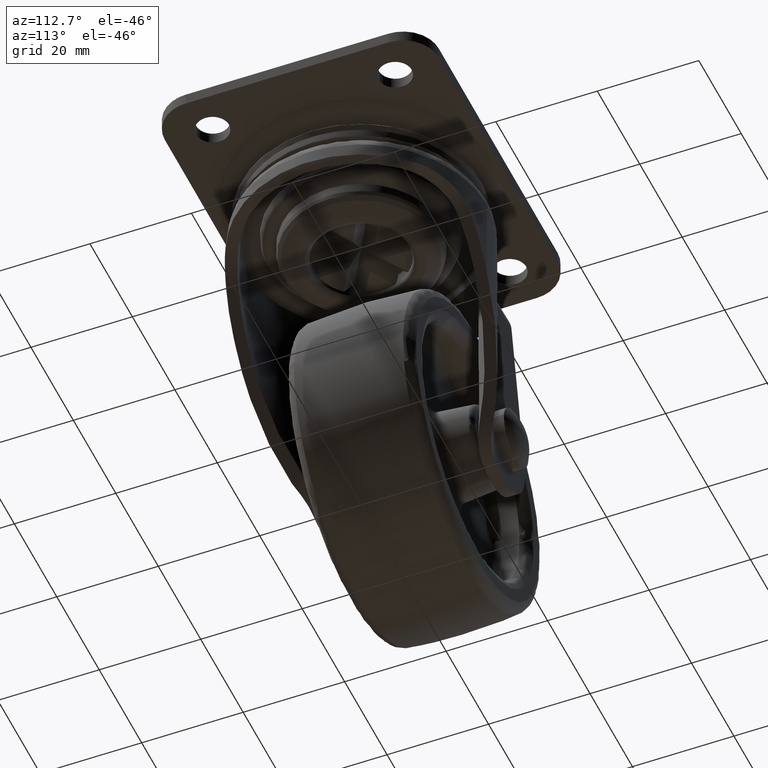
[diagram: clean part render]
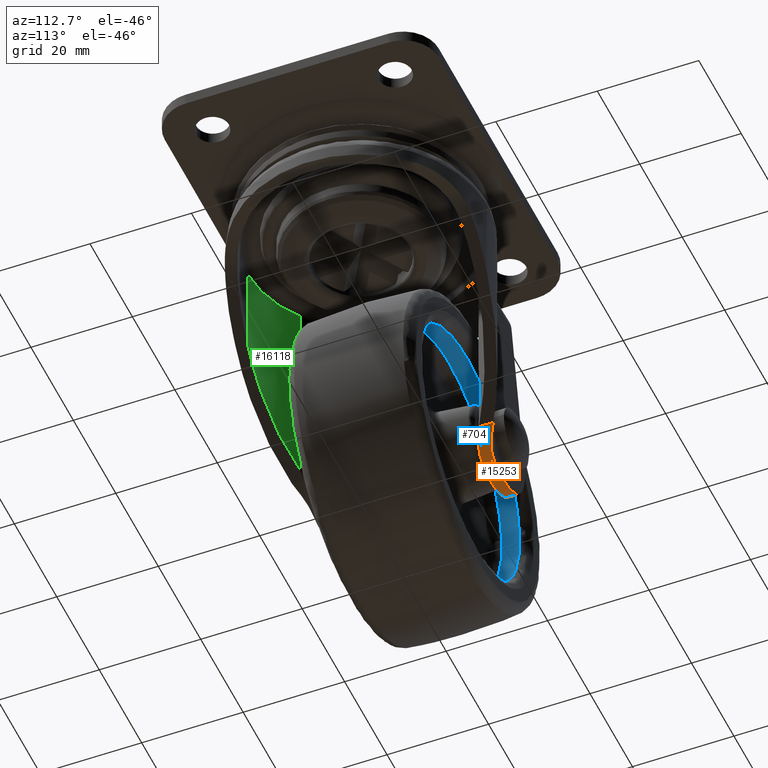
[diagram: same view with three faces highlighted in distinct colors, each labeled with its STEP entity id]
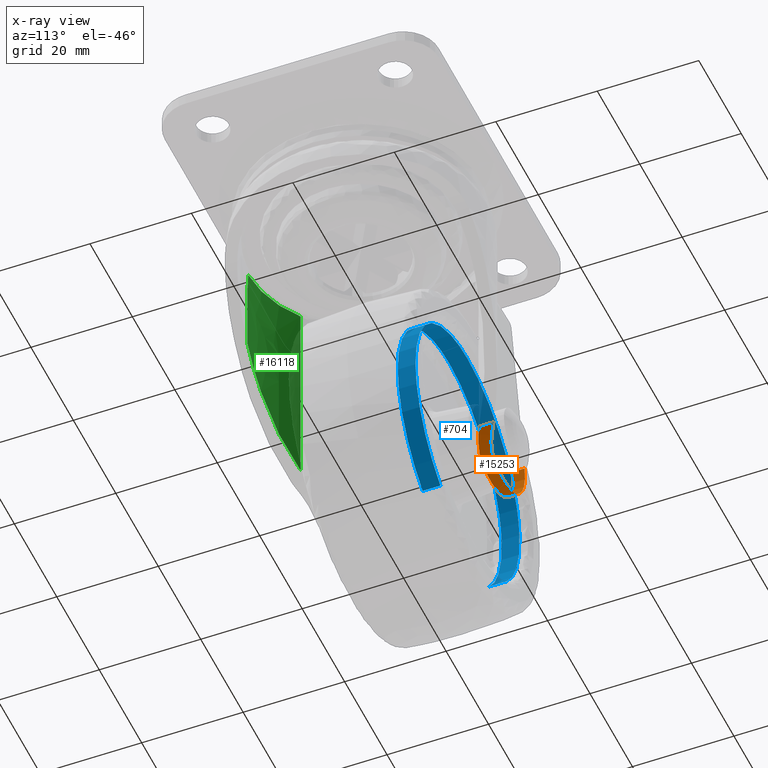
[diagram: x-ray of the same camera — body ghosted, the three highlighted faces saturated]
A machine part, auxiliary view with three faces highlighted in distinct colors.
The next image is the same camera in x-ray (body ghosted, the three faces saturated) — at least one of them is partly hidden behind the body in this view.
Their STEP definitions:

[orange] entity #15253 — the highlighted face is a freeform B-spline surface patch.
#15128=CARTESIAN_POINT('',(-14.584685028560250,19.989959612538691,-53.950023721414453));
#15129=CARTESIAN_POINT('',(-14.584685028560250,15.280029837350050,-53.950023721414453));
#15130=CARTESIAN_POINT('',(-19.581232741208197,19.989959612538684,-61.906054317529829));
#15131=CARTESIAN_POINT('',(-19.581232741208197,15.280029837350051,-61.906054317529829));
#15132=CARTESIAN_POINT('',(-28.220943666885589,19.989959612538691,-58.215619788667162));
#15133=CARTESIAN_POINT('',(-28.220943666885589,15.280029837350050,-58.215619788667162));
#15134=CARTESIAN_POINT('',(-36.860654592563002,19.989959612538684,-54.525185259804488));
#15135=CARTESIAN_POINT('',(-36.860654592563002,15.280029837350051,-54.525185259804488));
#15136=CARTESIAN_POINT('',(-34.567203993436209,19.989959612538691,-45.414532361111860));
#15137=CARTESIAN_POINT('',(-34.567203993436209,15.280029837350050,-45.414532361111860));
#15145=(BOUNDED_SURFACE()B_SPLINE_SURFACE(1,2,((#15128,#15130,#15132,#15134,#15136),(#15129,#15131,#15133,#15135,#15137)),.UNSPECIFIED.,.F.,.F.,.U.)B_SPLINE_SURFACE_WITH_KNOTS((2,2),(3,2,3),(0.0,4.709929775188641),(0.0,16.232456992832422,32.464913985664843),.UNSPECIFIED.)GEOMETRIC_REPRESENTATION_ITEM()RATIONAL_B_SPLINE_SURFACE(((1.0,0.760405965600031,1.0,0.760405965600031,1.0),(1.0,0.760405965600031,1.0,0.760405965600031,1.0)))REPRESENTATION_ITEM('')SURFACE());
#15146=CARTESIAN_POINT('',(-34.745005646522102,17.696581632656649,-46.259749379837203));
#15147=VERTEX_POINT('',#15146);
#15148=CARTESIAN_POINT('',(-20.019497922535550,17.853252000823051,-58.392616629469813));
#15149=VERTEX_POINT('',#15148);
#15150=CARTESIAN_POINT('',(-34.745005646522102,17.696581632656649,-46.259749379837203));
#15151=CARTESIAN_POINT('',(-35.810440731135003,17.685246056994778,-52.539216016037649));
#15152=CARTESIAN_POINT('',(-30.894833408678512,17.737545103208429,-56.589358952538902));
#15153=CARTESIAN_POINT('',(-25.979226086221995,17.789844149422091,-60.639501889040147));
#15154=CARTESIAN_POINT('',(-20.019497922535550,17.853252000823051,-58.392616629469813));
#15162=(BOUNDED_CURVE()B_SPLINE_CURVE(2,(#15150,#15151,#15152,#15153,#15154),.UNSPECIFIED.,.F.,.U.)B_SPLINE_CURVE_WITH_KNOTS((3,2,3),(0.0,0.500000000000000,1.0),.UNSPECIFIED.)CURVE()GEOMETRIC_REPRESENTATION_ITEM()RATIONAL_B_SPLINE_CURVE((1.0,0.865399324793042,1.0,0.865399324793042,1.0))REPRESENTATION_ITEM(''));
#15163=EDGE_CURVE('',#15147,#15149,#15162,.T.);
#15164=ORIENTED_EDGE('',*,*,#15163,.T.);
#15165=CARTESIAN_POINT('',(-15.193558866906150,19.537611649274250,-54.822755066191313));
#15166=VERTEX_POINT('',#15165);
#15167=CARTESIAN_POINT('',(-20.019497922535550,17.853252000823051,-58.392616629469813));
#15168=CARTESIAN_POINT('',(-19.522657645432439,17.858538076563921,-58.205302197614792));
#15169=CARTESIAN_POINT('',(-19.043946497870461,17.909510013208529,-57.983972169996370));
#15170=CARTESIAN_POINT('',(-18.467246050208310,18.021270146477640,-57.665514235795413));
#15171=CARTESIAN_POINT('',(-18.353287824061709,18.046002033750870,-57.599868938586283));
#15172=CARTESIAN_POINT('',(-18.129773615824561,18.099526766632181,-57.465792123058527));
#15173=CARTESIAN_POINT('',(-18.019949368258040,18.128370186462028,-57.397214124152178));
#15174=CARTESIAN_POINT('',(-17.696007475668530,18.220691423492180,-57.186993427107971));
#15175=CARTESIAN_POINT('',(-17.487408955176068,18.289945478282860,-57.040872321058629));
#15176=CARTESIAN_POINT('',(-17.083841370772671,18.441898034508249,-56.737164688739988));
#15177=CARTESIAN_POINT('',(-16.888875522469458,18.524602735493580,-56.579576956579430));
#15178=CARTESIAN_POINT('',(-16.606087077362812,18.657578604573459,-56.334766626267523));
#15179=CARTESIAN_POINT('',(-16.513436668383729,18.703392930471448,-56.251756538333993));
#15180=CARTESIAN_POINT('',(-16.331291858827139,18.797828840275301,-56.082929978326312));
#15181=CARTESIAN_POINT('',(-16.241702489920829,18.846504819013660,-55.997018870809761));
#15182=CARTESIAN_POINT('',(-15.802552989229230,19.095909714333690,-55.561465904893943));
#15183=CARTESIAN_POINT('',(-15.484131345806960,19.311645950777748,-55.199056697091663));
#15184=CARTESIAN_POINT('',(-15.193558866906081,19.537611649274339,-54.822755066191398));
#15185=B_SPLINE_CURVE_WITH_KNOTS('',3,(#15167,#15168,#15169,#15170,#15171,#15172,#15173,#15174,#15175,#15176,#15177,#15178,#15179,#15180,#15181,#15182,#15183,#15184),.UNSPECIFIED.,.F.,.U.,(4,2,2,2,2,2,2,2,4),(0.0,0.249999999999997,0.312499999999996,0.374999999999995,0.499999999999994,0.624999999999994,0.687499999999995,0.749999999999997,1.0),.UNSPECIFIED.);
#15186=EDGE_CURVE('',#15149,#15166,#15185,.T.);
#15187=ORIENTED_EDGE('',*,*,#15186,.T.);
#15188=CARTESIAN_POINT('',(-14.745581793341140,19.877885138411649,-54.198721778351498));
#15189=VERTEX_POINT('',#15188);
#15190=CARTESIAN_POINT('',(-15.193558866906150,19.537611649274250,-54.822755066191199));
#15191=CARTESIAN_POINT('',(-15.038038723742270,19.658552964546939,-54.621350983699351));
#15192=CARTESIAN_POINT('',(-14.888573680798380,19.771812557872860,-54.413351748837471));
#15193=CARTESIAN_POINT('',(-14.745581793341049,19.877885138411710,-54.198721778351583));
#15194=QUASI_UNIFORM_CURVE('',3,(#15190,#15191,#15192,#15193),.UNSPECIFIED.,.F.,.U.);
#15195=EDGE_CURVE('',#15166,#15189,#15194,.T.);
#15196=ORIENTED_EDGE('',*,*,#15195,.T.);
#15197=CARTESIAN_POINT('',(-14.745581793341140,17.056729903750949,-54.198721778351498));
#15198=VERTEX_POINT('',#15197);
#15199=CARTESIAN_POINT('',(-14.745581793341140,19.877885138411649,-54.198721778351498));
#15200=CARTESIAN_POINT('',(-14.745581793341140,17.056729903750949,-54.198721778351498));
#15201=QUASI_UNIFORM_CURVE('',1,(#15199,#15200),.UNSPECIFIED.,.F.,.U.);
#15202=EDGE_CURVE('',#15189,#15198,#15201,.T.);
#15203=ORIENTED_EDGE('',*,*,#15202,.T.);
#15204=CARTESIAN_POINT('',(-19.995028718448751,15.553382165800651,-58.383358211924012));
#15205=VERTEX_POINT('',#15204);
#15206=CARTESIAN_POINT('',(-19.995028718448751,15.553382165800651,-58.383358211924012));
#15207=CARTESIAN_POINT('',(-19.718705031221340,15.556322080309741,-58.278429749468607));
#15208=CARTESIAN_POINT('',(-19.449606868208061,15.570272475633590,-58.163530507148252));
#15209=CARTESIAN_POINT('',(-18.924884892517561,15.617192940123809,-57.914732065916873));
#15210=CARTESIAN_POINT('',(-18.669264078902810,15.650172662988579,-57.780830093268797));
#15211=CARTESIAN_POINT('',(-18.170884614111699,15.732793562441429,-57.494488314675827));
#15212=CARTESIAN_POINT('',(-17.928127490625162,15.782441476149661,-57.342047584329400));
#15213=CARTESIAN_POINT('',(-17.573395907196470,15.867922796827781,-57.099517877903800));
#15214=CARTESIAN_POINT('',(-17.456721524168881,15.898253828023980,-57.016360031243231));
#15215=CARTESIAN_POINT('',(-17.226495663678570,15.962362119317330,-56.845382543534917));
#15216=CARTESIAN_POINT('',(-17.112800383422570,15.996193852382000,-56.757431916802922));
#15217=CARTESIAN_POINT('',(-16.557120702407140,16.171751953008592,-56.310045859444458));
#15218=CARTESIAN_POINT('',(-16.149250982473699,16.333536519678098,-55.925171923780660));
#15219=CARTESIAN_POINT('',(-15.586111814043580,16.594506005762860,-55.307926754915727));
#15220=CARTESIAN_POINT('',(-15.406570230496770,16.684574088290439,-55.095475732244097));
#15221=CARTESIAN_POINT('',(-15.149203125400760,16.822658671483250,-54.766372443530173));
#15222=CARTESIAN_POINT('',(-15.065312284716279,16.869238796993731,-54.654796623786787));
#15223=CARTESIAN_POINT('',(-14.901957119156640,16.962845174361249,-54.428694369419048));
#15224=CARTESIAN_POINT('',(-14.822624224357639,17.009791617378930,-54.314362007942833));
#15225=CARTESIAN_POINT('',(-14.745581793341060,17.056729903751059,-54.198721778351590));
#15226=B_SPLINE_CURVE_WITH_KNOTS('',3,(#15206,#15207,#15208,#15209,#15210,#15211,#15212,#15213,#15214,#15215,#15216,#15217,#15218,#15219,#15220,#15221,#15222,#15223,#15224,#15225),.UNSPECIFIED.,.F.,.U.,(4,2,2,2,2,2,2,2,2,4),(0.0,0.125000000000002,0.250000000000004,0.375000000000006,0.437500000000006,0.500000000000007,0.750000000000006,0.875000000000004,0.937500000000002,1.0),.UNSPECIFIED.);
#15227=EDGE_CURVE('',#15205,#15198,#15226,.T.);
#15228=ORIENTED_EDGE('',*,*,#15227,.F.);
#15229=CARTESIAN_POINT('',(-34.745005646522102,15.396451460313299,-46.259749379837203));
#15230=VERTEX_POINT('',#15229);
#15231=CARTESIAN_POINT('',(-34.745005646522102,15.396451460313299,-46.259749379837203));
#15232=CARTESIAN_POINT('',(-35.811902141057317,15.385100336146319,-52.547829281154812));
#15233=CARTESIAN_POINT('',(-30.884732781224152,15.437522395344420,-56.597671139169492));
#15234=CARTESIAN_POINT('',(-25.957563421390983,15.489944454542517,-60.647512997184158));
#15235=CARTESIAN_POINT('',(-19.995028718448751,15.553382165800519,-58.383358211924097));
#15243=(BOUNDED_CURVE()B_SPLINE_CURVE(2,(#15231,#15232,#15233,#15234,#15235),.UNSPECIFIED.,.F.,.U.)B_SPLINE_CURVE_WITH_KNOTS((3,2,3),(0.0,0.500000000000000,1.0),.UNSPECIFIED.)CURVE()GEOMETRIC_REPRESENTATION_ITEM()RATIONAL_B_SPLINE_CURVE((1.0,0.865101230286564,1.0,0.865101230286564,1.0))REPRESENTATION_ITEM(''));
#15244=EDGE_CURVE('',#15230,#15205,#15243,.T.);
#15245=ORIENTED_EDGE('',*,*,#15244,.F.);
#15246=CARTESIAN_POINT('',(-34.745005646522102,17.696581632656649,-46.259749379837203));
#15247=CARTESIAN_POINT('',(-34.745005646522102,15.396451460313299,-46.259749379837203));
#15248=QUASI_UNIFORM_CURVE('',1,(#15246,#15247),.UNSPECIFIED.,.F.,.U.);
#15249=EDGE_CURVE('',#15147,#15230,#15248,.T.);
#15250=ORIENTED_EDGE('',*,*,#15249,.F.);
#15251=EDGE_LOOP('',(#15164,#15187,#15196,#15203,#15228,#15245,#15250));
#15252=FACE_OUTER_BOUND('',#15251,.T.);
#15253=ADVANCED_FACE('',(#15252),#15145,.T.);

[blue] entity #704 — the highlighted face is a freeform B-spline surface patch.
#534=CARTESIAN_POINT('',(-12.217712289268318,10.587500000769335,-69.401071577974520));
#535=CARTESIAN_POINT('',(-10.379585617207434,10.587500000769341,-68.276948745069674));
#536=CARTESIAN_POINT('',(-8.765875080719258,10.587500000769341,-66.849258263758472));
#537=CARTESIAN_POINT('',(9.583465183039209,10.587500000769337,-50.615133344477726));
#538=CARTESIAN_POINT('',(-6.650659736241533,10.587500000769341,-32.265793080719263));
#539=CARTESIAN_POINT('',(-22.884784655522271,10.587500000769337,-13.916452816960796));
#540=CARTESIAN_POINT('',(-41.234124919280752,10.587500000769341,-30.150577736241530));
#541=CARTESIAN_POINT('',(-59.583465183039202,10.587500000769337,-46.384702655522275));
#542=CARTESIAN_POINT('',(-43.349340263758457,10.587500000769341,-64.734042919280739));
#543=CARTESIAN_POINT('',(-12.217712289268318,6.910312499181044,-69.401071577974520));
#544=CARTESIAN_POINT('',(-10.379585617207434,6.910312499181044,-68.276948745069674));
#545=CARTESIAN_POINT('',(-8.765875080719258,6.910312499181044,-66.849258263758472));
#546=CARTESIAN_POINT('',(9.583465183039209,6.910312499181044,-50.615133344477726));
#547=CARTESIAN_POINT('',(-6.650659736241533,6.910312499181044,-32.265793080719263));
#548=CARTESIAN_POINT('',(-22.884784655522271,6.910312499181044,-13.916452816960796));
#549=CARTESIAN_POINT('',(-41.234124919280752,6.910312499181044,-30.150577736241530));
#550=CARTESIAN_POINT('',(-59.583465183039202,6.910312499181044,-46.384702655522275));
#551=CARTESIAN_POINT('',(-43.349340263758457,6.910312499181044,-64.734042919280739));
#559=(BOUNDED_SURFACE()B_SPLINE_SURFACE(2,1,((#534,#543),(#535,#544),(#536,#545),(#537,#546),(#538,#547),(#539,#548),(#540,#549),(#541,#550),(#542,#551)),.UNSPECIFIED.,.F.,.F.,.U.)B_SPLINE_SURFACE_WITH_KNOTS((3,2,2,2,3),(2,2),(0.0,4.871131611256605,45.463895038394973,86.056658465533317,126.649421892671700),(0.0,3.677187501588294),.UNSPECIFIED.)GEOMETRIC_REPRESENTATION_ITEM()RATIONAL_B_SPLINE_SURFACE(((0.938140952186599,0.938140952186599),(0.964852813742386,0.964852813742386),(1.0,1.0),(0.707106781186548,0.707106781186548),(1.0,1.0),(0.707106781186548,0.707106781186548),(1.0,1.0),(0.707106781186548,0.707106781186548),(1.0,1.0)))REPRESENTATION_ITEM('')SURFACE());
#560=CARTESIAN_POINT('',(-12.217713956080519,10.500000000107750,-69.401072597324713));
#561=VERTEX_POINT('',#560);
#562=CARTESIAN_POINT('',(-0.502034409111537,10.500000000724521,-48.807784720586490));
#563=VERTEX_POINT('',#562);
#564=CARTESIAN_POINT('',(-12.217713956080523,10.500000000107745,-69.401072597324713));
#565=CARTESIAN_POINT('',(-0.672097317157479,10.500000000319242,-62.340248577040512));
#566=CARTESIAN_POINT('',(-0.502034409111537,10.500000000724523,-48.807784720586497));
#574=(BOUNDED_CURVE()B_SPLINE_CURVE(2,(#564,#565,#566),.UNSPECIFIED.,.F.,.U.)B_SPLINE_CURVE_WITH_KNOTS((3,3),(0.089144147396039,0.247784295921034),.UNSPECIFIED.)CURVE()GEOMETRIC_REPRESENTATION_ITEM()RATIONAL_B_SPLINE_CURVE((0.865603178504615,0.812290260107054,0.994854295642415))REPRESENTATION_ITEM(''));
#575=EDGE_CURVE('',#561,#563,#574,.T.);
#576=ORIENTED_EDGE('',*,*,#575,.F.);
#577=CARTESIAN_POINT('',(-12.217713936007470,6.999999999883936,-69.401072585048809));
#578=VERTEX_POINT('',#577);
#579=CARTESIAN_POINT('',(-12.217713956080519,10.500000000107750,-69.401072597324713));
#580=CARTESIAN_POINT('',(-12.217713936007470,6.999999999883936,-69.401072585048809));
#581=QUASI_UNIFORM_CURVE('',1,(#579,#580),.UNSPECIFIED.,.F.,.U.);
#582=EDGE_CURVE('',#561,#578,#581,.T.);
#583=ORIENTED_EDGE('',*,*,#582,.T.);
#584=CARTESIAN_POINT('',(-0.502034409111546,6.999999999219783,-48.807784720587172));
#585=VERTEX_POINT('',#584);
#586=CARTESIAN_POINT('',(-12.217713936007472,6.999999999883937,-69.401072585048823));
#587=CARTESIAN_POINT('',(-0.672097316965296,6.999999999656217,-62.340248561687481));
#588=CARTESIAN_POINT('',(-0.502034409111546,6.999999999219783,-48.807784720587165));
#596=(BOUNDED_CURVE()B_SPLINE_CURVE(2,(#586,#587,#588),.UNSPECIFIED.,.F.,.U.)B_SPLINE_CURVE_WITH_KNOTS((3,3),(0.089144147542995,0.247784295921024),.UNSPECIFIED.)CURVE()GEOMETRIC_REPRESENTATION_ITEM()RATIONAL_B_SPLINE_CURVE((0.865603178405843,0.812290260276175,0.994854295642392))REPRESENTATION_ITEM(''));
#597=EDGE_CURVE('',#578,#585,#596,.T.);
#598=ORIENTED_EDGE('',*,*,#597,.T.);
#599=CARTESIAN_POINT('',(-25.0,7.0,-24.000018000000001));
#600=VERTEX_POINT('',#599);
#601=CARTESIAN_POINT('',(-0.502034409111546,6.999999999219783,-48.807784720587172));
#602=CARTESIAN_POINT('',(-0.500100000000000,7.0,-48.653857437523527));
#603=CARTESIAN_POINT('',(-0.500100000000000,7.0,-48.499918000000001));
#604=CARTESIAN_POINT('',(-0.500100000000003,6.999999999999999,-24.000018000000011));
#605=CARTESIAN_POINT('',(-25.0,7.0,-24.000018000000001));
#613=(BOUNDED_CURVE()B_SPLINE_CURVE(2,(#601,#602,#603,#604,#605),.UNSPECIFIED.,.F.,.U.)B_SPLINE_CURVE_WITH_KNOTS((3,2,3),(0.247784295921024,0.250000000000000,0.500000000000000),.UNSPECIFIED.)CURVE()GEOMETRIC_REPRESENTATION_ITEM()RATIONAL_B_SPLINE_CURVE((0.994854295642393,0.997404141201483,1.0,0.707106781186547,1.0))REPRESENTATION_ITEM(''));
#614=EDGE_CURVE('',#585,#600,#613,.T.);
#615=ORIENTED_EDGE('',*,*,#614,.T.);
#616=CARTESIAN_POINT('',(-49.440259252521983,6.999999999226862,-46.791460309709350));
#617=VERTEX_POINT('',#616);
#618=CARTESIAN_POINT('',(-25.0,7.0,-24.000018000000001));
#619=CARTESIAN_POINT('',(-47.847059504314814,7.0,-24.000018000000022));
#620=CARTESIAN_POINT('',(-49.440259252521990,6.999999999226862,-46.791460309709350));
#628=(BOUNDED_CURVE()B_SPLINE_CURVE(2,(#618,#619,#620),.UNSPECIFIED.,.F.,.U.)B_SPLINE_CURVE_WITH_KNOTS((3,3),(0.500000000000000,0.737833686534890),.UNSPECIFIED.)CURVE()GEOMETRIC_REPRESENTATION_ITEM()RATIONAL_B_SPLINE_CURVE((1.0,0.721360504034106,0.972879876386548))REPRESENTATION_ITEM(''));
#629=EDGE_CURVE('',#600,#617,#628,.T.);
#630=ORIENTED_EDGE('',*,*,#629,.T.);
#631=CARTESIAN_POINT('',(-43.349341371342497,7.0,-64.734041667384560));
#632=VERTEX_POINT('',#631);
#633=CARTESIAN_POINT('',(-49.440259252521990,6.999999999226862,-46.791460309709350));
#634=CARTESIAN_POINT('',(-49.499899999999997,7.0,-47.644648151963615));
#635=CARTESIAN_POINT('',(-49.499899999999997,7.0,-48.499918000000001));
#636=CARTESIAN_POINT('',(-49.499900000000004,6.999999999999999,-57.782098820698486));
#637=CARTESIAN_POINT('',(-43.349341371342540,6.999999999999999,-64.734041667384616));
#645=(BOUNDED_CURVE()B_SPLINE_CURVE(2,(#633,#634,#635,#636,#637),.UNSPECIFIED.,.F.,.U.)B_SPLINE_CURVE_WITH_KNOTS((3,2,3),(0.737833686534889,0.750000000000000,0.865779877755503),.UNSPECIFIED.)CURVE()GEOMETRIC_REPRESENTATION_ITEM()RATIONAL_B_SPLINE_CURVE((0.972879876386546,0.985746277152440,1.0,0.864355435721451,0.854350160005853))REPRESENTATION_ITEM(''));
#646=EDGE_CURVE('',#617,#632,#645,.T.);
#647=ORIENTED_EDGE('',*,*,#646,.T.);
#648=CARTESIAN_POINT('',(-43.349341384848458,10.499999999999931,-64.734041652118833));
#649=VERTEX_POINT('',#648);
#650=CARTESIAN_POINT('',(-43.349341384848458,10.499999999999931,-64.734041652118833));
#651=CARTESIAN_POINT('',(-43.349341371342497,7.0,-64.734041667384560));
#652=QUASI_UNIFORM_CURVE('',1,(#650,#651),.UNSPECIFIED.,.F.,.U.);
#653=EDGE_CURVE('',#649,#632,#652,.T.);
#654=ORIENTED_EDGE('',*,*,#653,.F.);
#655=CARTESIAN_POINT('',(-49.440259252521933,10.500000000731539,-46.791460309708597));
#656=VERTEX_POINT('',#655);
#657=CARTESIAN_POINT('',(-49.440259252521933,10.500000000731545,-46.791460309708611));
#658=CARTESIAN_POINT('',(-49.499899999999997,10.500000000000005,-47.644648151962862));
#659=CARTESIAN_POINT('',(-49.499899999999997,10.500000000000000,-48.499918000000001));
#660=CARTESIAN_POINT('',(-49.499900000000004,10.500000000000000,-57.782098809044285));
#661=CARTESIAN_POINT('',(-43.349341384848515,10.500000000000000,-64.734041652118862));
#669=(BOUNDED_CURVE()B_SPLINE_CURVE(2,(#657,#658,#659,#660,#661),.UNSPECIFIED.,.F.,.U.)B_SPLINE_CURVE_WITH_KNOTS((3,2,3),(0.737833686534878,0.750000000000000,0.865779877629854),.UNSPECIFIED.)CURVE()GEOMETRIC_REPRESENTATION_ITEM()RATIONAL_B_SPLINE_CURVE((0.972879876386524,0.985746277152428,1.0,0.864355435868658,0.854350160027569))REPRESENTATION_ITEM(''));
#670=EDGE_CURVE('',#656,#649,#669,.T.);
#671=ORIENTED_EDGE('',*,*,#670,.F.);
#672=CARTESIAN_POINT('',(-25.0,10.500000000000000,-24.000018000000001));
#673=VERTEX_POINT('',#672);
#674=CARTESIAN_POINT('',(-25.0,10.500000000000000,-24.000018000000001));
#675=CARTESIAN_POINT('',(-47.847059504313350,10.500000000000002,-24.000018000000001));
#676=CARTESIAN_POINT('',(-49.440259252521926,10.500000000731546,-46.791460309708604));
#684=(BOUNDED_CURVE()B_SPLINE_CURVE(2,(#674,#675,#676),.UNSPECIFIED.,.F.,.U.)B_SPLINE_CURVE_WITH_KNOTS((3,3),(0.500000000000000,0.737833686534878),.UNSPECIFIED.)CURVE()GEOMETRIC_REPRESENTATION_ITEM()RATIONAL_B_SPLINE_CURVE((1.0,0.721360504034119,0.972879876386525))REPRESENTATION_ITEM(''));
#685=EDGE_CURVE('',#673,#656,#684,.T.);
#686=ORIENTED_EDGE('',*,*,#685,.F.);
#687=CARTESIAN_POINT('',(-0.502034409111537,10.500000000724521,-48.807784720586497));
#688=CARTESIAN_POINT('',(-0.500100000000000,10.499999999999998,-48.653857437522852));
#689=CARTESIAN_POINT('',(-0.500100000000000,10.500000000000000,-48.499918000000001));
#690=CARTESIAN_POINT('',(-0.500100000000003,10.500000000000000,-24.000018000000011));
#691=CARTESIAN_POINT('',(-25.0,10.500000000000000,-24.000018000000001));
#699=(BOUNDED_CURVE()B_SPLINE_CURVE(2,(#687,#688,#689,#690,#691),.UNSPECIFIED.,.F.,.U.)B_SPLINE_CURVE_WITH_KNOTS((3,2,3),(0.247784295921034,0.250000000000000,0.500000000000000),.UNSPECIFIED.)CURVE()GEOMETRIC_REPRESENTATION_ITEM()RATIONAL_B_SPLINE_CURVE((0.994854295642415,0.997404141201494,1.0,0.707106781186547,1.0))REPRESENTATION_ITEM(''));
#700=EDGE_CURVE('',#563,#673,#699,.T.);
#701=ORIENTED_EDGE('',*,*,#700,.F.);
#702=EDGE_LOOP('',(#576,#583,#598,#615,#630,#647,#654,#671,#686,#701));
#703=FACE_OUTER_BOUND('',#702,.T.);
#704=ADVANCED_FACE('',(#703),#559,.F.);

[green] entity #16118 — the highlighted face is a freeform B-spline surface patch.
#11577=CARTESIAN_POINT('',(-13.781632184325000,-17.721995213180101,-12.338144000000000));
#11578=VERTEX_POINT('',#11577);
#12193=CARTESIAN_POINT('',(-0.439119854150790,-22.445705017969249,-12.338144000021799));
#12194=VERTEX_POINT('',#12193);
#12202=CARTESIAN_POINT('',(-13.781632184325000,-17.721995213180069,-12.338144000000000));
#12203=CARTESIAN_POINT('',(-7.894913794015567,-22.299842495725894,-12.338144000000000));
#12204=CARTESIAN_POINT('',(-0.439119854150790,-22.445705017969249,-12.338144000021799));
#12212=(BOUNDED_CURVE()B_SPLINE_CURVE(2,(#12202,#12203,#12204),.UNSPECIFIED.,.F.,.U.)CURVE()GEOMETRIC_REPRESENTATION_ITEM()QUASI_UNIFORM_CURVE()RATIONAL_B_SPLINE_CURVE((1.0,0.949013931679748,1.0))REPRESENTATION_ITEM(''));
#12213=EDGE_CURVE('',#11578,#12194,#12212,.T.);
#15355=CARTESIAN_POINT('',(-13.781632184325000,-17.721995213180101,-52.654191065557612));
#15356=VERTEX_POINT('',#15355);
#15370=CARTESIAN_POINT('',(-4.123862E-015,-22.449999999999999,-30.571963963621300));
#15371=VERTEX_POINT('',#15370);
#15372=CARTESIAN_POINT('',(-13.781632184324989,-17.721995213180069,-52.654191065557612));
#15373=CARTESIAN_POINT('',(-7.701824141325835,-22.450000000000006,-42.912550877656884));
#15374=CARTESIAN_POINT('',(-4.123862E-015,-22.449999999999999,-30.571963963621300));
#15382=(BOUNDED_CURVE()B_SPLINE_CURVE(2,(#15372,#15373,#15374),.UNSPECIFIED.,.F.,.U.)CURVE()GEOMETRIC_REPRESENTATION_ITEM()QUASI_UNIFORM_CURVE()RATIONAL_B_SPLINE_CURVE((1.0,0.945885418662253,1.0))REPRESENTATION_ITEM(''));
#15383=EDGE_CURVE('',#15356,#15371,#15382,.T.);
#15874=CARTESIAN_POINT('',(-13.781632184325000,-17.721995213180101,-12.338144000000000));
#15875=CARTESIAN_POINT('',(-13.781632184325000,-17.721995213180101,-52.654191065557612));
#15876=QUASI_UNIFORM_CURVE('',1,(#15874,#15875),.UNSPECIFIED.,.F.,.U.);
#15877=EDGE_CURVE('',#11578,#15356,#15876,.T.);
#15984=CARTESIAN_POINT('',(1.515450E-015,-22.449999999999999,-17.471764074454700));
#15985=VERTEX_POINT('',#15984);
#15986=CARTESIAN_POINT('',(2.125403E-015,-22.449999999999999,-17.471764074454651));
#15987=CARTESIAN_POINT('',(-0.063023418724824,-22.449999999999999,-16.615353578163319));
#15988=CARTESIAN_POINT('',(-0.130913188636053,-22.449737624914050,-15.759194086895841));
#15989=CARTESIAN_POINT('',(-0.277299630475110,-22.448406683000449,-14.047963618354069));
#15990=CARTESIAN_POINT('',(-0.355643104565287,-22.447338127647669,-13.192819113062860));
#15991=CARTESIAN_POINT('',(-0.439119854150798,-22.445705017969271,-12.338144000021799));
#15992=B_SPLINE_CURVE_WITH_KNOTS('',3,(#15986,#15987,#15988,#15989,#15990,#15991),.UNSPECIFIED.,.F.,.U.,(4,2,4),(0.0,0.500000000000000,1.0),.UNSPECIFIED.);
#15993=EDGE_CURVE('',#15985,#12194,#15992,.T.);
#16089=CARTESIAN_POINT('',(-4.123862E-015,-22.449999999999999,-30.571963963621300));
#16090=CARTESIAN_POINT('',(1.515450E-015,-22.449999999999999,-17.471764074454700));
#16091=QUASI_UNIFORM_CURVE('',1,(#16089,#16090),.UNSPECIFIED.,.F.,.U.);
#16092=EDGE_CURVE('',#15371,#15985,#16091,.T.);
#16097=CARTESIAN_POINT('',(0.638328982338094,-22.440923245497430,-53.662092242196543));
#16098=CARTESIAN_POINT('',(0.638328982338094,-22.440923245497430,-11.305045293945090));
#16099=CARTESIAN_POINT('',(-7.832516224858398,-22.681875275032933,-53.662092242196536));
#16100=CARTESIAN_POINT('',(-7.832516224858398,-22.681875275032933,-11.305045293945085));
#16101=CARTESIAN_POINT('',(-14.349685705721347,-17.265254708431506,-53.662092242196543));
#16102=CARTESIAN_POINT('',(-14.349685705721347,-17.265254708431506,-11.305045293945083));
#16110=(BOUNDED_SURFACE()B_SPLINE_SURFACE(1,2,((#16097,#16099,#16101),(#16098,#16100,#16102)),.UNSPECIFIED.,.F.,.F.,.U.)B_SPLINE_SURFACE_WITH_KNOTS((2,2),(3,3),(0.0,42.357046948251458),(0.0,16.384262434433339),.UNSPECIFIED.)GEOMETRIC_REPRESENTATION_ITEM()RATIONAL_B_SPLINE_SURFACE(((1.0,0.931642292530200,0.991629092799076),(1.0,0.931642292530200,0.991629092799076)))REPRESENTATION_ITEM('')SURFACE());
#16111=ORIENTED_EDGE('',*,*,#15877,.F.);
#16112=ORIENTED_EDGE('',*,*,#12213,.T.);
#16113=ORIENTED_EDGE('',*,*,#15993,.F.);
#16114=ORIENTED_EDGE('',*,*,#16092,.F.);
#16115=ORIENTED_EDGE('',*,*,#15383,.F.);
#16116=EDGE_LOOP('',(#16111,#16112,#16113,#16114,#16115));
#16117=FACE_OUTER_BOUND('',#16116,.T.);
#16118=ADVANCED_FACE('',(#16117),#16110,.F.);